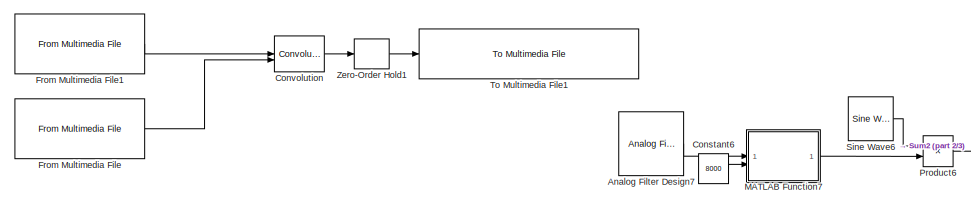
[diagram: root canvas - part 1/3, top center region]
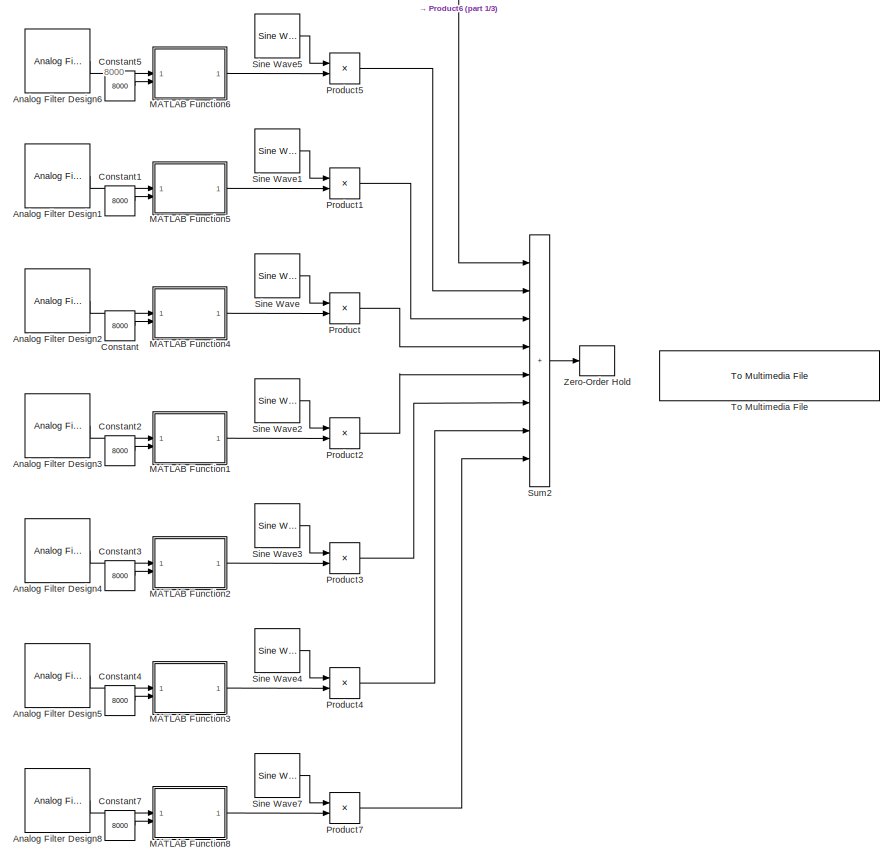
[diagram: root canvas - part 2/3, right side, full height]
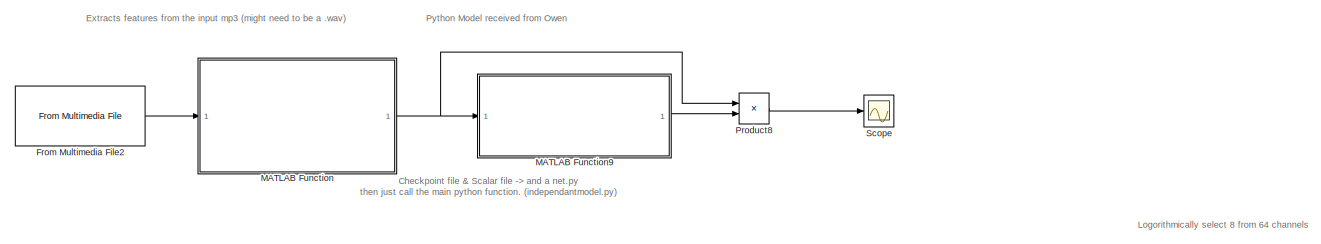
[diagram: root canvas - part 3/3, middle left region]
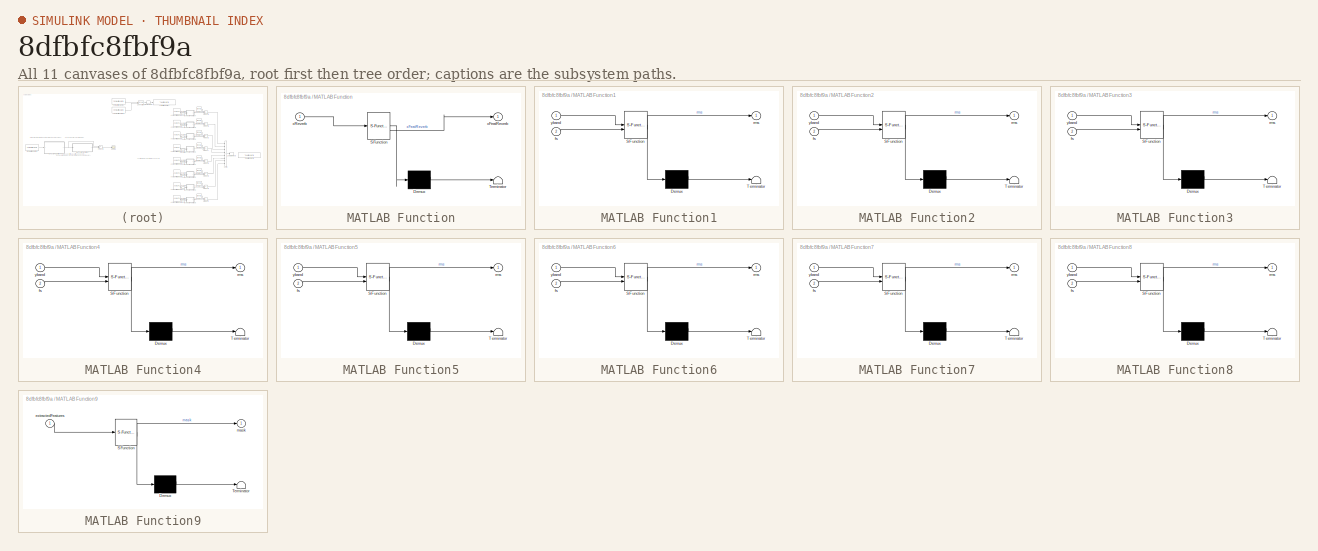
[diagram: thumbnail index - all 11 canvases of the model, root first then tree order]
MODEL slx_8dfbfc8fbf9a
KIND model
CONFIG AbsTol = auto
CONFIG EnableMultiTasking = off
CONFIG FixedStep = auto
CONFIG MaxStep = auto
CONFIG MinStep = auto
CONFIG RelTol = 1e-3
CONFIG SampleTimeConstraint = Unconstrained
CONFIG SolverName = ode23tb
CONFIG StartTime = 0.0
CONFIG StopTime = 3
BLOCK [Reference] Analog Filter Design1  REF=dspfdesign/Analog
Filter Design
  Commented = on
  SourceBlock = dspfdesign/Analog\nFilter Design
  SourceType = Analog Filter Design
BLOCK [Reference] Analog Filter Design2  REF=dspfdesign/Analog
Filter Design
  Commented = on
  SourceBlock = dspfdesign/Analog\nFilter Design
  SourceType = Analog Filter Design
BLOCK [Reference] Analog Filter Design3  REF=dspfdesign/Analog
Filter Design
  Commented = on
  SourceBlock = dspfdesign/Analog\nFilter Design
  SourceType = Analog Filter Design
BLOCK [Reference] Analog Filter Design4  REF=dspfdesign/Analog
Filter Design
  Commented = on
  SourceBlock = dspfdesign/Analog\nFilter Design
  SourceType = Analog Filter Design
BLOCK [Reference] Analog Filter Design5  REF=dspfdesign/Analog
Filter Design
  Commented = on
  SourceBlock = dspfdesign/Analog\nFilter Design
  SourceType = Analog Filter Design
BLOCK [Reference] Analog Filter Design6  REF=dspfdesign/Analog
Filter Design
  Commented = on
  SourceBlock = dspfdesign/Analog\nFilter Design
  SourceType = Analog Filter Design
BLOCK [Reference] Analog Filter Design7  REF=dspfdesign/Analog
Filter Design
  Commented = on
  SourceBlock = dspfdesign/Analog\nFilter Design
  SourceType = Analog Filter Design
BLOCK [Reference] Analog Filter Design8  REF=dspfdesign/Analog
Filter Design
  Commented = on
  SourceBlock = dspfdesign/Analog\nFilter Design
  SourceType = Analog Filter Design
BLOCK [Constant] Constant
  Commented = on
  Value = 8000
BLOCK [Constant] Constant1
  Commented = on
  Value = 8000
BLOCK [Constant] Constant2
  Commented = on
  Value = 8000
BLOCK [Constant] Constant3
  Commented = on
  Value = 8000
BLOCK [Constant] Constant4
  Commented = on
  Value = 8000
BLOCK [Constant] Constant5
  Commented = on
  Value = 8000
BLOCK [Constant] Constant6
  Commented = on
  Value = 8000
BLOCK [Constant] Constant7
  Commented = on
  Value = 8000
BLOCK [Reference] Convolution  REF=dspsigops/Convolution
  Commented = on
  SourceBlock = dspsigops/Convolution
  SourceType = Convolution
BLOCK [Reference] From Multimedia File  REF=dspvision/From Multimedia File
  Commented = on
  LibrarySourceBlock = dspsrcs4/From Multimedia File
  SourceBlock = dspvision/From Multimedia File
  SourceType = From Multimedia File
BLOCK [Reference] From Multimedia File1  REF=dspvision/From Multimedia File
  Commented = on
  LibrarySourceBlock = dspsrcs4/From Multimedia File
  SourceBlock = dspvision/From Multimedia File
  SourceType = From Multimedia File
BLOCK [Reference] From Multimedia File2  REF=dspvision/From Multimedia File
  LibrarySourceBlock = dspsrcs4/From Multimedia File
  SourceBlock = dspvision/From Multimedia File
  SourceType = From Multimedia File
BLOCK [SubSystem] MATLAB Function
  ErrorFcn = Stateflow.Translate.translate
  LibrarySourceBlock = simulink/User-Defined\nFunctions/MATLAB Function
  PermitHierarchicalResolution = ExplicitOnly
  SFBlockType = MATLAB Function
  TreatAsAtomicUnit = on
BLOCK [Demux] MATLAB Function/ Demux 
  Outputs = 1
BLOCK [S-Function] MATLAB Function/ SFunction 
  EnableBusSupport = on
  FunctionName = sf_sfun
  PortCounts = [1 2]
  SFcnIsStateOwnerBlock = off
  SFunctionDeploymentMode = off
  Tag = Stateflow S-Function 9
BLOCK [Terminator] MATLAB Function/ Terminator 
BLOCK [Outport] MATLAB Function/xFeatReverb
BLOCK [Inport] MATLAB Function/xReverb
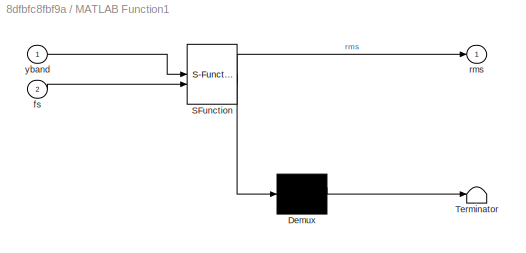
BLOCK [SubSystem] MATLAB Function1
  Commented = on
  ErrorFcn = Stateflow.Translate.translate
  PermitHierarchicalResolution = ExplicitOnly
  SFBlockType = MATLAB Function
  TreatAsAtomicUnit = on
BLOCK [Demux] MATLAB Function1/ Demux 
  Outputs = 1
BLOCK [S-Function] MATLAB Function1/ SFunction 
  EnableBusSupport = on
  FunctionName = sf_sfun
  PortCounts = [2 2]
  SFcnIsStateOwnerBlock = off
  SFunctionDeploymentMode = off
  Tag = Stateflow S-Function 1
BLOCK [Terminator] MATLAB Function1/ Terminator 
BLOCK [Inport] MATLAB Function1/fs
  Port = 2
BLOCK [Outport] MATLAB Function1/rms
BLOCK [Inport] MATLAB Function1/yband
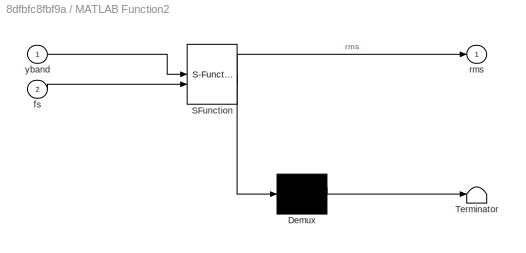
BLOCK [SubSystem] MATLAB Function2
  Commented = on
  ErrorFcn = Stateflow.Translate.translate
  PermitHierarchicalResolution = ExplicitOnly
  SFBlockType = MATLAB Function
  TreatAsAtomicUnit = on
BLOCK [Demux] MATLAB Function2/ Demux 
  Outputs = 1
BLOCK [S-Function] MATLAB Function2/ SFunction 
  EnableBusSupport = on
  FunctionName = sf_sfun
  PortCounts = [2 2]
  SFcnIsStateOwnerBlock = off
  SFunctionDeploymentMode = off
  Tag = Stateflow S-Function 2
BLOCK [Terminator] MATLAB Function2/ Terminator 
BLOCK [Inport] MATLAB Function2/fs
  Port = 2
BLOCK [Outport] MATLAB Function2/rms
BLOCK [Inport] MATLAB Function2/yband
BLOCK [SubSystem] MATLAB Function3
  Commented = on
  ErrorFcn = Stateflow.Translate.translate
  PermitHierarchicalResolution = ExplicitOnly
  SFBlockType = MATLAB Function
  TreatAsAtomicUnit = on
BLOCK [Demux] MATLAB Function3/ Demux 
  Outputs = 1
BLOCK [S-Function] MATLAB Function3/ SFunction 
  EnableBusSupport = on
  FunctionName = sf_sfun
  PortCounts = [2 2]
  SFcnIsStateOwnerBlock = off
  SFunctionDeploymentMode = off
  Tag = Stateflow S-Function 3
BLOCK [Terminator] MATLAB Function3/ Terminator 
BLOCK [Inport] MATLAB Function3/fs
  Port = 2
BLOCK [Outport] MATLAB Function3/rms
BLOCK [Inport] MATLAB Function3/yband
BLOCK [SubSystem] MATLAB Function4
  Commented = on
  ErrorFcn = Stateflow.Translate.translate
  PermitHierarchicalResolution = ExplicitOnly
  SFBlockType = MATLAB Function
  TreatAsAtomicUnit = on
BLOCK [Demux] MATLAB Function4/ Demux 
  Outputs = 1
BLOCK [S-Function] MATLAB Function4/ SFunction 
  EnableBusSupport = on
  FunctionName = sf_sfun
  PortCounts = [2 2]
  SFcnIsStateOwnerBlock = off
  SFunctionDeploymentMode = off
  Tag = Stateflow S-Function 5
BLOCK [Terminator] MATLAB Function4/ Terminator 
BLOCK [Inport] MATLAB Function4/fs
  Port = 2
BLOCK [Outport] MATLAB Function4/rms
BLOCK [Inport] MATLAB Function4/yband
BLOCK [SubSystem] MATLAB Function5
  Commented = on
  ErrorFcn = Stateflow.Translate.translate
  PermitHierarchicalResolution = ExplicitOnly
  SFBlockType = MATLAB Function
  TreatAsAtomicUnit = on
BLOCK [Demux] MATLAB Function5/ Demux 
  Outputs = 1
BLOCK [S-Function] MATLAB Function5/ SFunction 
  EnableBusSupport = on
  FunctionName = sf_sfun
  PortCounts = [2 2]
  SFcnIsStateOwnerBlock = off
  SFunctionDeploymentMode = off
  Tag = Stateflow S-Function 6
BLOCK [Terminator] MATLAB Function5/ Terminator 
BLOCK [Inport] MATLAB Function5/fs
  Port = 2
BLOCK [Outport] MATLAB Function5/rms
BLOCK [Inport] MATLAB Function5/yband
BLOCK [SubSystem] MATLAB Function6
  Commented = on
  ErrorFcn = Stateflow.Translate.translate
  PermitHierarchicalResolution = ExplicitOnly
  SFBlockType = MATLAB Function
  TreatAsAtomicUnit = on
BLOCK [Demux] MATLAB Function6/ Demux 
  Outputs = 1
BLOCK [S-Function] MATLAB Function6/ SFunction 
  EnableBusSupport = on
  FunctionName = sf_sfun
  PortCounts = [2 2]
  SFcnIsStateOwnerBlock = off
  SFunctionDeploymentMode = off
  Tag = Stateflow S-Function 4
BLOCK [Terminator] MATLAB Function6/ Terminator 
BLOCK [Inport] MATLAB Function6/fs
  Port = 2
BLOCK [Outport] MATLAB Function6/rms
BLOCK [Inport] MATLAB Function6/yband
BLOCK [SubSystem] MATLAB Function7
  Commented = on
  ErrorFcn = Stateflow.Translate.translate
  PermitHierarchicalResolution = ExplicitOnly
  SFBlockType = MATLAB Function
  TreatAsAtomicUnit = on
BLOCK [Demux] MATLAB Function7/ Demux 
  Outputs = 1
BLOCK [S-Function] MATLAB Function7/ SFunction 
  EnableBusSupport = on
  FunctionName = sf_sfun
  PortCounts = [2 2]
  SFcnIsStateOwnerBlock = off
  SFunctionDeploymentMode = off
  Tag = Stateflow S-Function 7
BLOCK [Terminator] MATLAB Function7/ Terminator 
BLOCK [Inport] MATLAB Function7/fs
  Port = 2
BLOCK [Outport] MATLAB Function7/rms
BLOCK [Inport] MATLAB Function7/yband
BLOCK [SubSystem] MATLAB Function8
  Commented = on
  ErrorFcn = Stateflow.Translate.translate
  PermitHierarchicalResolution = ExplicitOnly
  SFBlockType = MATLAB Function
  TreatAsAtomicUnit = on
BLOCK [Demux] MATLAB Function8/ Demux 
  Outputs = 1
BLOCK [S-Function] MATLAB Function8/ SFunction 
  EnableBusSupport = on
  FunctionName = sf_sfun
  PortCounts = [2 2]
  SFcnIsStateOwnerBlock = off
  SFunctionDeploymentMode = off
  Tag = Stateflow S-Function 8
BLOCK [Terminator] MATLAB Function8/ Terminator 
BLOCK [Inport] MATLAB Function8/fs
  Port = 2
BLOCK [Outport] MATLAB Function8/rms
BLOCK [Inport] MATLAB Function8/yband
BLOCK [SubSystem] MATLAB Function9
  ErrorFcn = Stateflow.Translate.translate
  LibrarySourceBlock = simulink/User-Defined\nFunctions/MATLAB Function
  PermitHierarchicalResolution = ExplicitOnly
  SFBlockType = MATLAB Function
  TreatAsAtomicUnit = on
BLOCK [Demux] MATLAB Function9/ Demux 
  Outputs = 1
BLOCK [S-Function] MATLAB Function9/ SFunction 
  EnableBusSupport = on
  FunctionName = sf_sfun
  PortCounts = [1 2]
  SFcnIsStateOwnerBlock = off
  SFunctionDeploymentMode = off
  Tag = Stateflow S-Function 10
BLOCK [Terminator] MATLAB Function9/ Terminator 
BLOCK [Inport] MATLAB Function9/extractedFeatures
BLOCK [Outport] MATLAB Function9/mask
BLOCK [Product] Product
  Commented = on
BLOCK [Product] Product1
  Commented = on
BLOCK [Product] Product2
  Commented = on
BLOCK [Product] Product3
  Commented = on
BLOCK [Product] Product4
  Commented = on
BLOCK [Product] Product5
  Commented = on
BLOCK [Product] Product6
  Commented = on
BLOCK [Product] Product7
  Commented = on
BLOCK [Product] Product8
BLOCK [Scope] Scope
  Floating = off
  NumInputPorts = 1
  ScopeSpecificationString = Simulink.scopes.TimeScopeBlockCfg('CurrentConfiguration', extmgr.ConfigurationSet(extmgr.Configuration('Core','General UI',true),extmgr.Configuration('Core','Source UI',true),extmgr.Configuration('Sources','WiredSimulink',true),extmgr.Configuration('Visuals','Time Domain',true),extmgr.Configuration('Tools','Plot Navigation',true),extmgr.Configuration('Tools','Measurements',true)),'Version','2023a'...<+1ch>
BLOCK [Reference] Sine Wave  REF=dspsrcs4/Sine Wave
  Commented = on
  SourceBlock = dspsrcs4/Sine Wave
  SourceType = Sine Wave
BLOCK [Reference] Sine Wave1  REF=dspsrcs4/Sine Wave
  Commented = on
  SourceBlock = dspsrcs4/Sine Wave
  SourceType = Sine Wave
BLOCK [Reference] Sine Wave2  REF=dspsrcs4/Sine Wave
  Commented = on
  SourceBlock = dspsrcs4/Sine Wave
  SourceType = Sine Wave
BLOCK [Reference] Sine Wave3  REF=dspsrcs4/Sine Wave
  Commented = on
  SourceBlock = dspsrcs4/Sine Wave
  SourceType = Sine Wave
BLOCK [Reference] Sine Wave4  REF=dspsrcs4/Sine Wave
  Commented = on
  SourceBlock = dspsrcs4/Sine Wave
  SourceType = Sine Wave
BLOCK [Reference] Sine Wave5  REF=dspsrcs4/Sine Wave
  Commented = on
  SourceBlock = dspsrcs4/Sine Wave
  SourceType = Sine Wave
BLOCK [Reference] Sine Wave6  REF=dspsrcs4/Sine Wave
  Commented = on
  SourceBlock = dspsrcs4/Sine Wave
  SourceType = Sine Wave
BLOCK [Reference] Sine Wave7  REF=dspsrcs4/Sine Wave
  Commented = on
  SourceBlock = dspsrcs4/Sine Wave
  SourceType = Sine Wave
BLOCK [Sum] Sum2
  Commented = on
  IconShape = rectangular
  Inputs = ++++++++
BLOCK [Reference] To Multimedia File  REF=dspvision/To Multimedia File
  Commented = on
  LibrarySourceBlock = dspsnks4/To Multimedia File
  SourceBlock = dspvision/To Multimedia File
  SourceType = To Multimedia File
BLOCK [Reference] To Multimedia File1  REF=dspvision/To Multimedia File
  Commented = on
  LibrarySourceBlock = dspsnks4/To Multimedia File
  SourceBlock = dspvision/To Multimedia File
  SourceType = To Multimedia File
BLOCK [ZeroOrderHold] Zero-Order Hold
  Commented = on
  SampleTime = -1
BLOCK [ZeroOrderHold] Zero-Order Hold1
  Commented = on
  SampleTime = -1
ANNOTATION (root): 8000
ANNOTATION (root): Checkpoint file & Scalar file -> and a net.py then just call the main python function. (independantmodel.py)
ANNOTATION (root): Extracts features from the input mp3 (might need to be a .wav)
ANNOTATION (root): Logorithmically select 8 from 64 channels
ANNOTATION (root): Python Model received from Owen
LINE Analog Filter Design1:1 -> MATLAB Function5:1
LINE Analog Filter Design2:1 -> MATLAB Function4:1
LINE Analog Filter Design3:1 -> MATLAB Function1:1
LINE Analog Filter Design4:1 -> MATLAB Function2:1
LINE Analog Filter Design5:1 -> MATLAB Function3:1
LINE Analog Filter Design6:1 -> MATLAB Function6:1
LINE Analog Filter Design7:1 -> MATLAB Function7:1
LINE Analog Filter Design8:1 -> MATLAB Function8:1
LINE Constant1:1 -> MATLAB Function5:2
LINE Constant2:1 -> MATLAB Function1:2
LINE Constant3:1 -> MATLAB Function2:2
LINE Constant4:1 -> MATLAB Function3:2
LINE Constant5:1 -> MATLAB Function6:2
LINE Constant6:1 -> MATLAB Function7:2
LINE Constant7:1 -> MATLAB Function8:2
LINE Constant:1 -> MATLAB Function4:2
LINE Convolution:1 -> Zero-Order Hold1:1
LINE From Multimedia File1:1 -> Convolution:1
LINE From Multimedia File2:1 -> MATLAB Function:1
LINE From Multimedia File:1 -> Convolution:2
LINE MATLAB Function1:1 -> Product2:2
LINE MATLAB Function2:1 -> Product3:2
LINE MATLAB Function3:1 -> Product4:2
LINE MATLAB Function4:1 -> Product:2
LINE MATLAB Function5:1 -> Product1:2
LINE MATLAB Function6:1 -> Product5:2
LINE MATLAB Function7:1 -> Product6:2
LINE MATLAB Function8:1 -> Product7:2
LINE MATLAB Function9:1 -> Product8:2
NET MATLAB Function:1 -> MATLAB Function9:1, Product8:1
LINE Product1:1 -> Sum2:3
LINE Product2:1 -> Sum2:5
LINE Product3:1 -> Sum2:6
LINE Product4:1 -> Sum2:7
LINE Product5:1 -> Sum2:2
LINE Product6:1 -> Sum2:1
LINE Product7:1 -> Sum2:8
LINE Product8:1 -> Scope:1
LINE Product:1 -> Sum2:4
LINE Sine Wave1:1 -> Product1:1
LINE Sine Wave2:1 -> Product2:1
LINE Sine Wave3:1 -> Product3:1
LINE Sine Wave4:1 -> Product4:1
LINE Sine Wave5:1 -> Product5:1
LINE Sine Wave6:1 -> Product6:1
LINE Sine Wave7:1 -> Product7:1
LINE Sine Wave:1 -> Product:1
LINE Sum2:1 -> Zero-Order Hold:1
LINE Zero-Order Hold1:1 -> To Multimedia File1:1
note: NET lines group one-source signal fan-out (src -> all destinations, sorted); 1:1 wires keep LINE
CHART MATLAB Function2 states=1 transitions=1
  STATE_LABEL 'eML_blk_kernel()'
  STATE_LABEL "SCRIPT:\nfunction rms = getrms(yband,fs)\n\n    y = abs(yband); %rectifying it makes it sound bad\n\n    [b,a] = butter(2,400/(fs/2));\n\n    z = filter(b,a,y); %this filter also makes it sound bad\n\n    windowsize = round(4/(1000/fs)); %rms computed every 4ms = windowsize samples\n\n    [yupper,ylower] = envelope(yband,windowsize,'rms'); %changed to yband here\n\n    %envelope(z,windowsize,'rms');\n\n    rms =...<+12ch>"  <repeated x8 — deduplicated; at blocks: MATLAB Function2, MATLAB Function3, MATLAB Function6, MATLAB Function4, MATLAB Function5, MATLAB Function7, MATLAB Function8, MATLAB Function1>
CHART MATLAB Function3 states=1 transitions=1
  STATE_LABEL 'eML_blk_kernel()'
CHART MATLAB Function6 states=1 transitions=1
  STATE_LABEL 'eML_blk_kernel()'
CHART MATLAB Function4 states=1 transitions=1
  STATE_LABEL 'eML_blk_kernel()'
CHART MATLAB Function5 states=1 transitions=1
  STATE_LABEL 'eML_blk_kernel()'
CHART MATLAB Function7 states=1 transitions=1
  STATE_LABEL 'eML_blk_kernel()'
CHART MATLAB Function8 states=1 transitions=1
  STATE_LABEL 'eML_blk_kernel()'
CHART MATLAB Function states=1 transitions=1
  STATE_LABEL 'eML_blk_kernel()'
  STATE_LABEL 'SCRIPT:\n%[xAnechoic,fs] = audioread(wavFile); % change this to read in your mp3\n\n% you can use simulink to get the reverb from the xAnechoic\n% xReverb = [1,2,3,4] % this is where you can put in your reverberant signal for now\n\n%xFeatReverb = extractFeaturesAndLabelsSingleFile(xReverb)\n\n\nfunction xFeatReverb = extractFeaturesAndLabelsSingleFile(xReverb)\n    % Feature extraction/mask calculation par...<+3034ch>'
CHART MATLAB Function9 states=1 transitions=1
  STATE_LABEL 'eML_blk_kernel()'
  STATE_LABEL "SCRIPT:\nfunction mask = PythonModel(extractedFeatures)\n    mask = 0; % Has to be preassigned, otherwise Simulink throws an error\n    coder.extrinsic('py.models.test') % Python functions have to be run extrinsically, meaning no C code generated\n    mask = py.models.test(extractedFeatures);\nend"
CHART MATLAB Function1 states=1 transitions=1
  STATE_LABEL 'eML_blk_kernel()'
CHART  states=0 transitions=0
CHART  states=0 transitions=0
CHART  states=0 transitions=0
CHART  states=0 transitions=0
CHART  states=0 transitions=0
CHART  states=0 transitions=0
CHART  states=0 transitions=0
CHART  states=0 transitions=0
CHART  states=0 transitions=0
CHART  states=0 transitions=0
